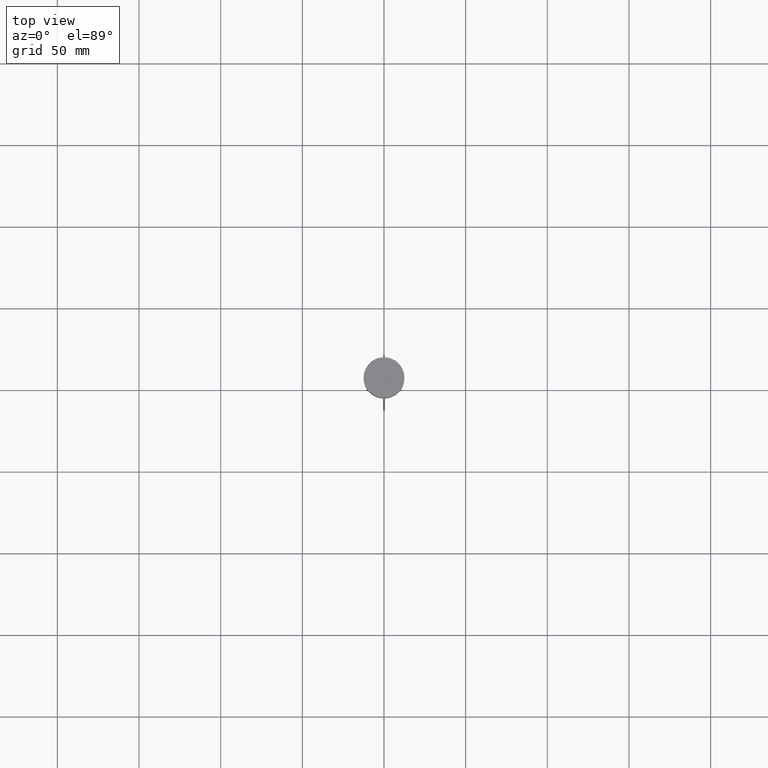
[diagram: clean part render]
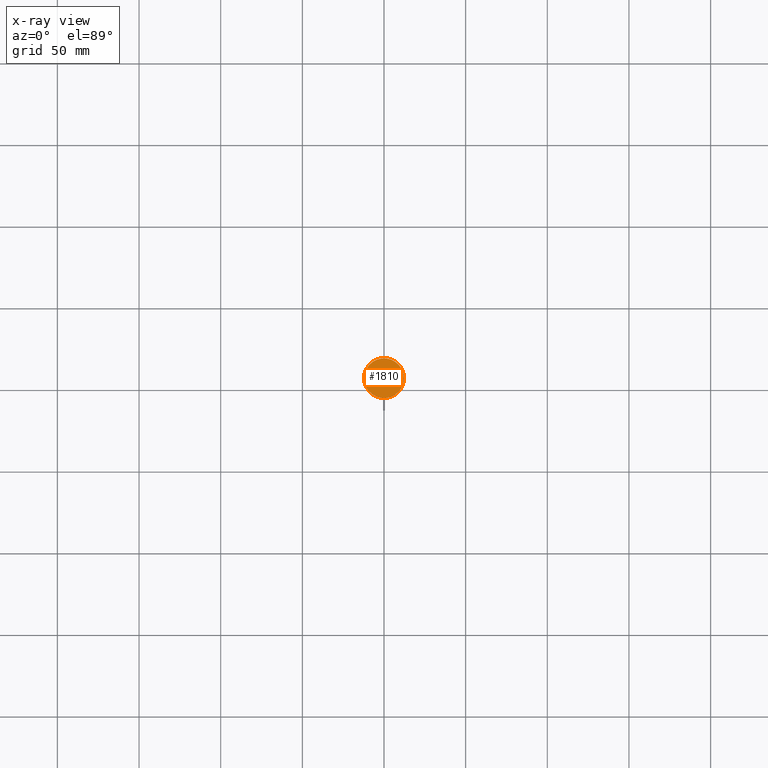
[diagram: x-ray — body ghosted, one internal face saturated and labeled with its STEP entity id]
A machine part, top view, then the same camera in x-ray: the body is ghosted and one INTERNAL B-rep face — a face not visible from any outside direction — is saturated and labeled: STEP entity #1810.
In plain terms, the highlighted planar face has unit normal (0, 0, -1).
Its self-contained STEP definition (entity closure, byte-faithful):
#110 = DIRECTION ( 'NONE',  ( -1.000000000000000000, 0.000000000000000000, 0.000000000000000000 ) ) ;
#324 = DIRECTION ( 'NONE',  ( -0.000000000000000000, -0.000000000000000000, 1.000000000000000000 ) ) ;
#453 = CARTESIAN_POINT ( 'NONE',  ( 0.000000000000000000, 0.000000000000000000, -20.49999999999999645 ) ) ;
#584 = PLANE ( 'NONE',  #1512 ) ;
#640 = DIRECTION ( 'NONE',  ( -1.000000000000000000, 0.000000000000000000, 0.000000000000000000 ) ) ;
#753 = EDGE_CURVE ( 'NONE', #1967, #1384, #1370, .T. ) ;
#860 = AXIS2_PLACEMENT_3D ( 'NONE', #953, #324, #640 ) ;
#948 = FACE_OUTER_BOUND ( 'NONE', #1522, .T. ) ;
#953 = CARTESIAN_POINT ( 'NONE',  ( 0.000000000000000000, 0.000000000000000000, -20.49999999999999645 ) ) ;
#1128 = DIRECTION ( 'NONE',  ( -1.000000000000000000, 0.000000000000000000, -0.000000000000000000 ) ) ;
#1370 = CIRCLE ( 'NONE', #2041, 12.20000000000000639 ) ;
#1384 = VERTEX_POINT ( 'NONE', #1763 ) ;
#1409 = CIRCLE ( 'NONE', #860, 12.20000000000000639 ) ;
#1512 = AXIS2_PLACEMENT_3D ( 'NONE', #453, #2069, #1128 ) ;
#1522 = EDGE_LOOP ( 'NONE', ( #1839, #1671 ) ) ;
#1573 = DIRECTION ( 'NONE',  ( -0.000000000000000000, -0.000000000000000000, 1.000000000000000000 ) ) ;
#1671 = ORIENTED_EDGE ( 'NONE', *, *, #753, .T. ) ;
#1762 = CARTESIAN_POINT ( 'NONE',  ( 12.20000000000000639, 1.512438796946981880E-15, -20.49999999999999645 ) ) ;
#1763 = CARTESIAN_POINT ( 'NONE',  ( -12.20000000000000639, 0.000000000000000000, -20.49999999999999645 ) ) ;
#1810 = ADVANCED_FACE ( 'NONE', ( #948 ), #584, .F. ) ;
#1839 = ORIENTED_EDGE ( 'NONE', *, *, #1863, .T. ) ;
#1863 = EDGE_CURVE ( 'NONE', #1384, #1967, #1409, .T. ) ;
#1937 = CARTESIAN_POINT ( 'NONE',  ( 0.000000000000000000, 0.000000000000000000, -20.49999999999999645 ) ) ;
#1967 = VERTEX_POINT ( 'NONE', #1762 ) ;
#2041 = AXIS2_PLACEMENT_3D ( 'NONE', #1937, #1573, #110 ) ;
#2069 = DIRECTION ( 'NONE',  ( 0.000000000000000000, 0.000000000000000000, -1.000000000000000000 ) ) ;